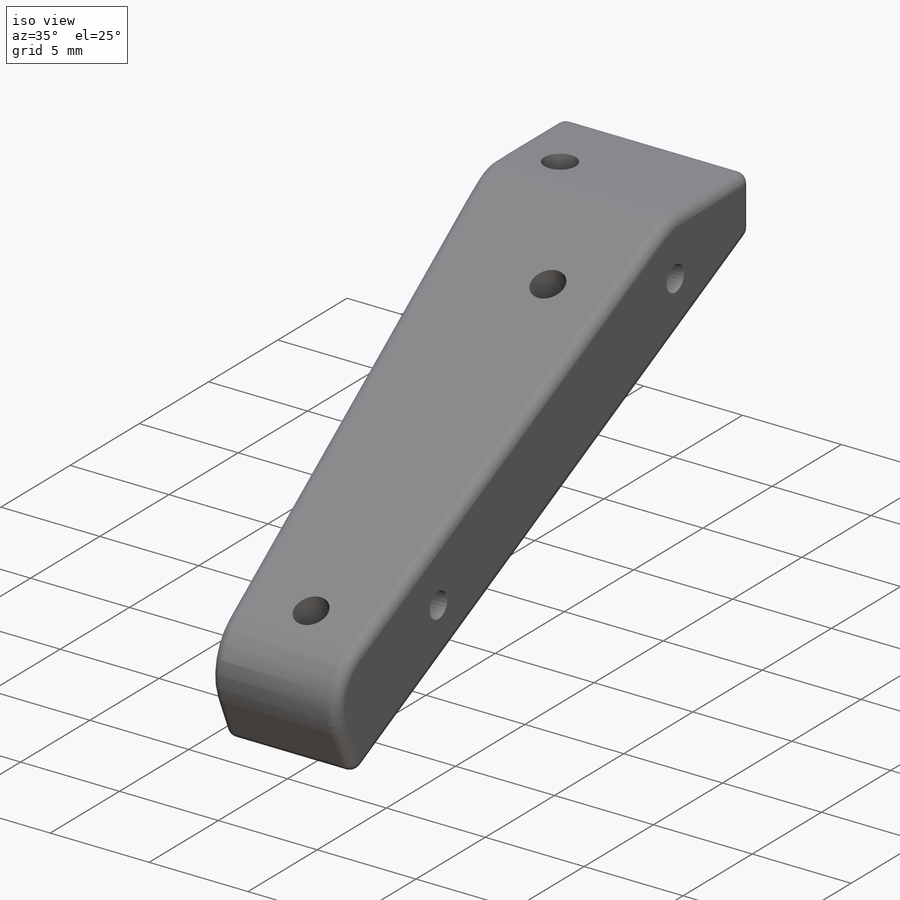
[diagram: iso view]
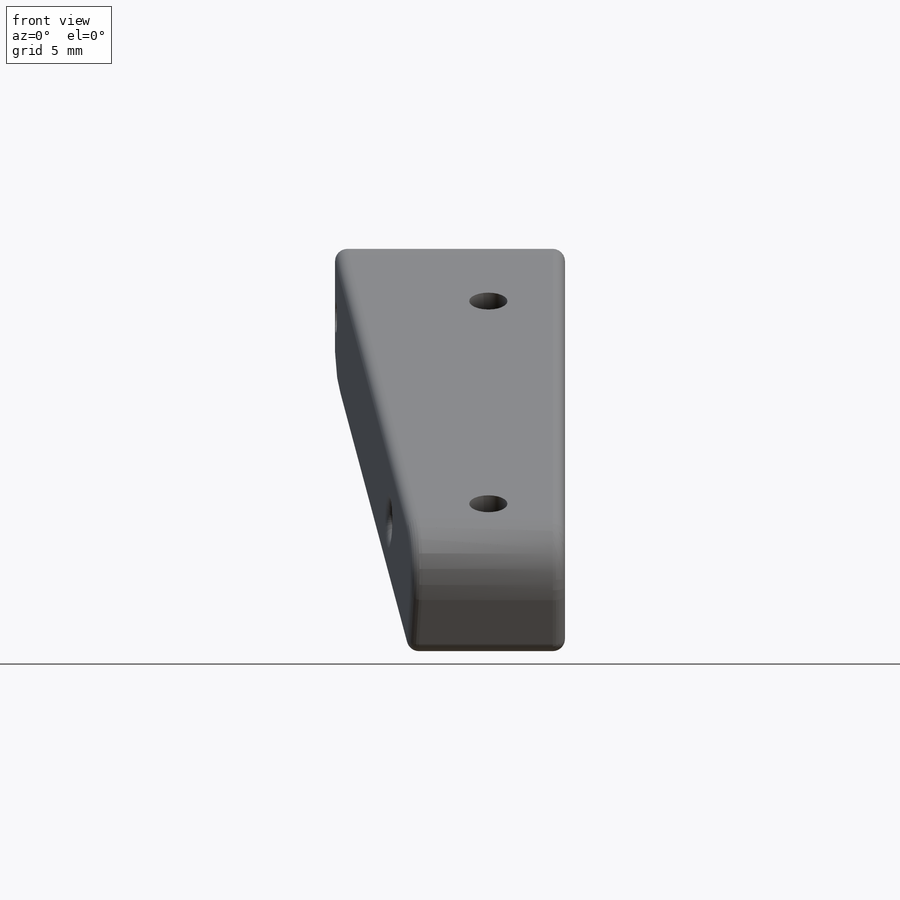
[diagram: front view]
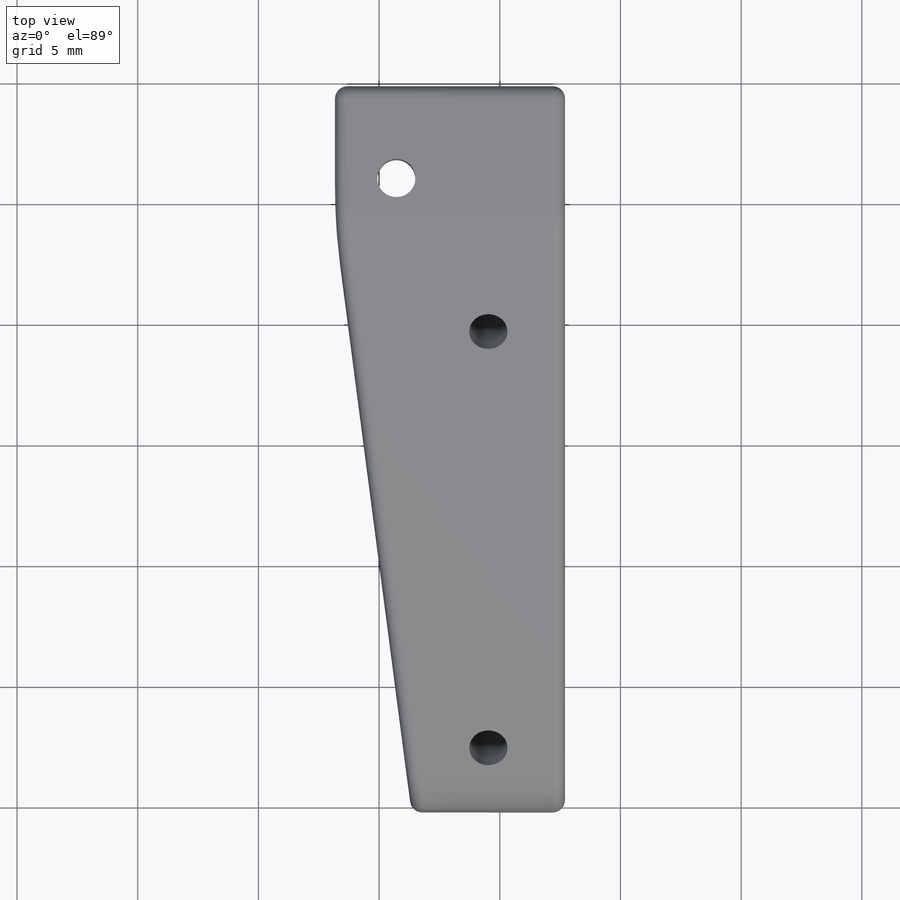
[diagram: top view]
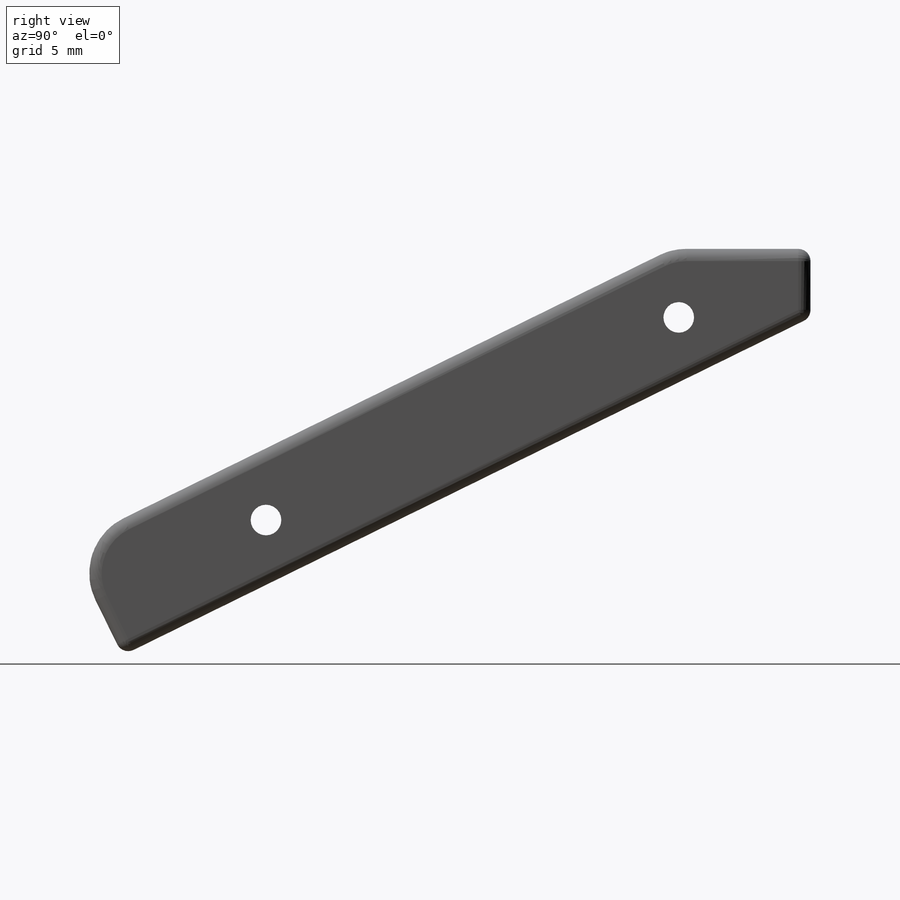
[diagram: right view]
SOLIDWORKS PART (.sldprt)
format: sldprt  version: not decoded by parser v0  size: 915,456 bytes
history: native  units: mm
features: sketch x5, cut_extrude x4, fillet x4, material x1, extrude x1, mirror x1 (+14 scaffold rows collapsed)
feature tree (30):
  scaffold x14  (default folders/planes/origin — collapsed)
  material  "ABS"
  sketch  "Sketch1"  dims[c1.D2=2.4384mm c1.D4=1.27mm c1.D5=2.54mm c1.D1=~47.460606mm c2.D1=26.15deg c2.D2=38.1mm c2.D3=~28.296317mm c3.D3=~0.351578deg c4.D3=9.525mm c4.D2=3.81mm c5.D3=5.08mm c5.D2=31.75mm c6.D3=5.08mm]
  extrude  "Boss-Extrude1"  Depth=12.7mm
  sketch  "Sketch2"  dims[D1=1.5875mm]
  cut_extrude  "Cut-Extrude1"  Depth=6.35mm
  sketch  "Sketch4"  dims[c1.D1=6.35mm c1.D2=3.175mm c2.D1=6.35mm]
  cut_extrude  "Cut-Extrude2"  [1 undecoded]
  fillet  "Fillet3"  Radius=2.54mm
  fillet  "Fillet5"  Radius=25.4mm
  fillet  "Fillet6"  Radius=0.508mm
  sketch  "Sketch7"  dims[c1.D1=~2.514061mm c1.D2=1.5875mm c2.D1=19.05mm c2.D3=8.9408mm c2.D4=3.175mm]
  cut_extrude  "Cut-Extrude3"  [1 undecoded]
  mirror  "Mirror1"
  sketch  "Sketch8"  dims[D1=7.62mm]
  cut_extrude  "Cut-Extrude4"  [1 undecoded]
  fillet  "Fillet7"  Radius=1.27mm
decode coverage: 11 of 15 modeling features carry decoded parameters
note: ~ marks probable driven/reference dimensions
note: 3 parameter values undecoded
summary: no parameter record found for 3 features
note: suppression state not decoded; provenance and decode notes live in map.json
